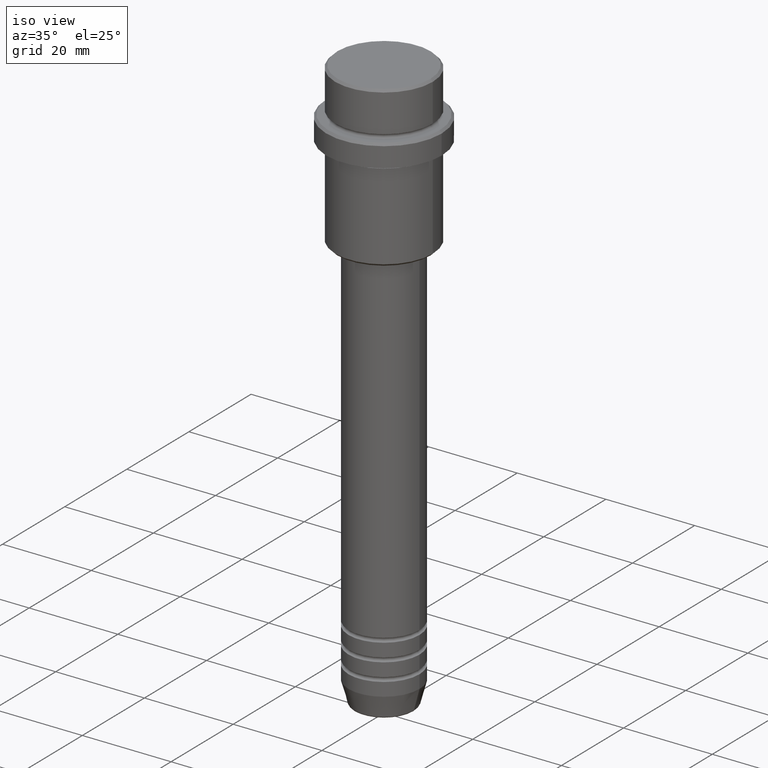
[diagram: clean part render]
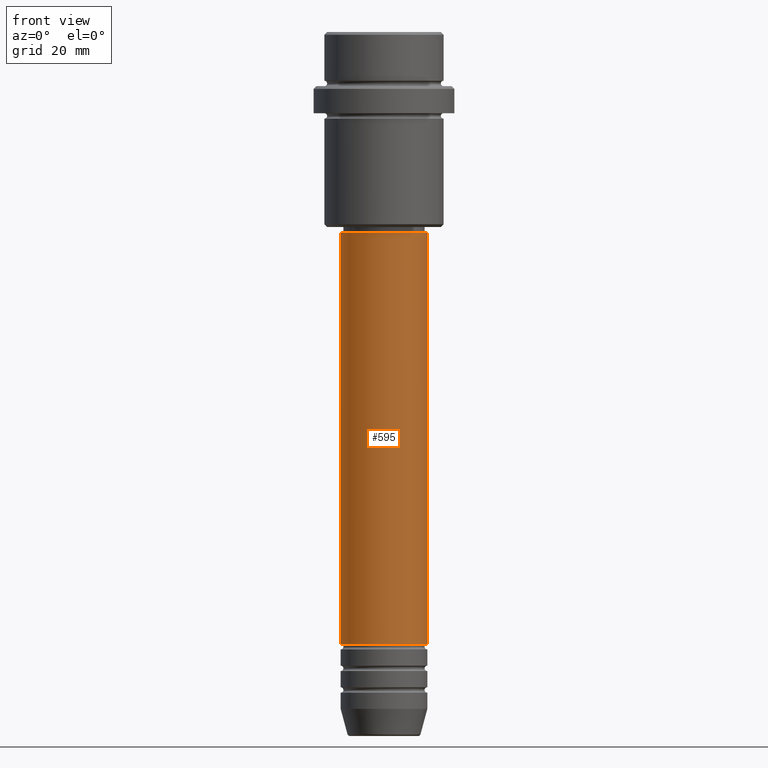
[diagram: tour spotlight — one face highlighted and labeled with its STEP entity id]
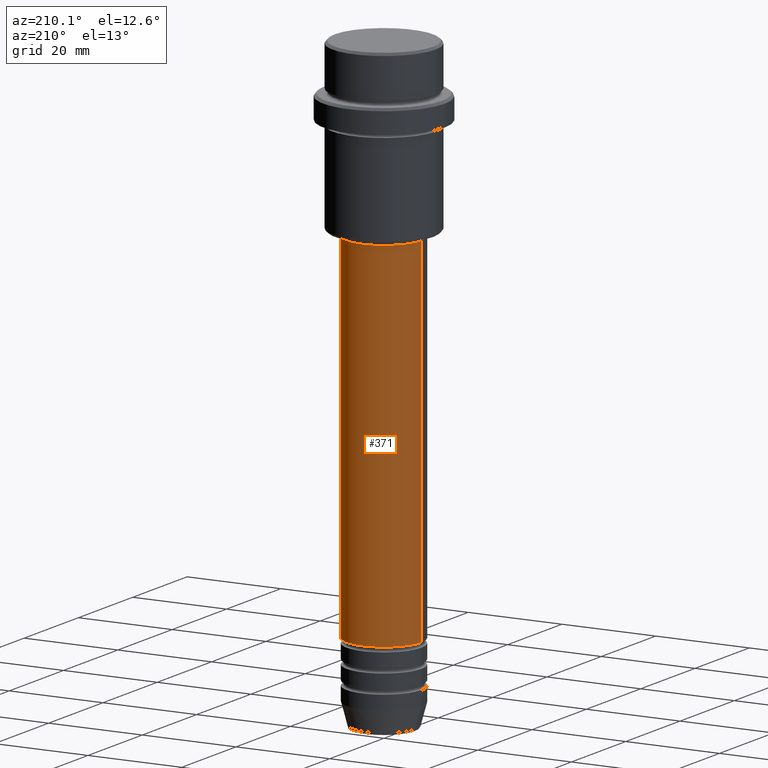
[diagram: tour spotlight — one face highlighted and labeled with its STEP entity id]
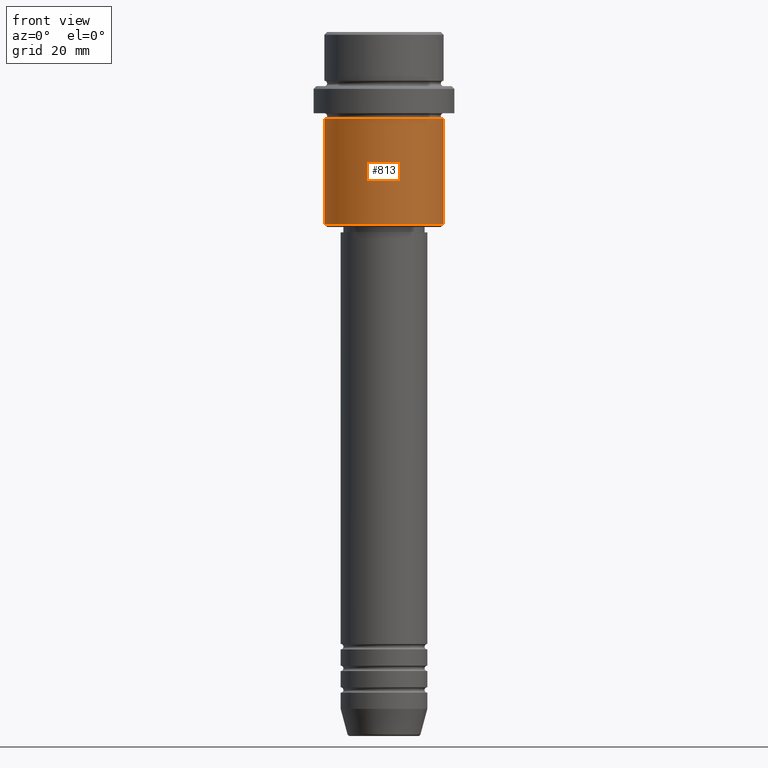
[diagram: tour spotlight — one face highlighted and labeled with its STEP entity id]
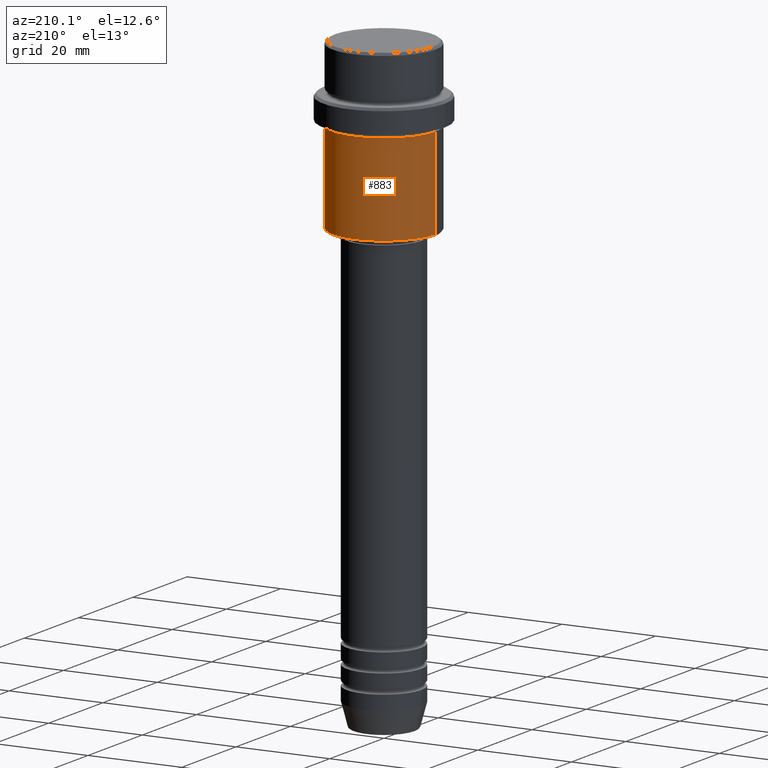
[diagram: tour spotlight — one face highlighted and labeled with its STEP entity id]
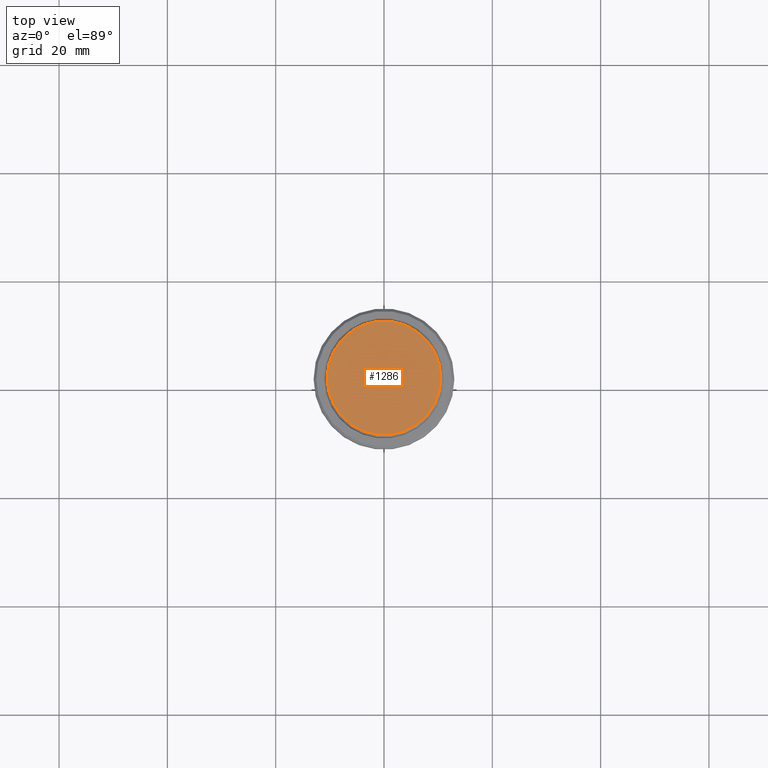
[diagram: tour spotlight — one face highlighted and labeled with its STEP entity id]
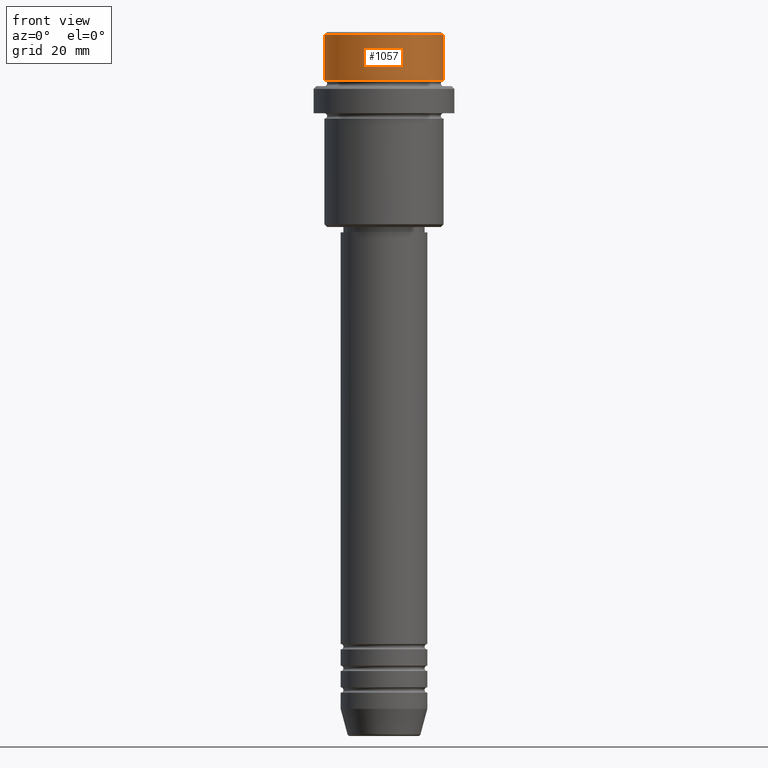
[diagram: tour spotlight — one face highlighted and labeled with its STEP entity id]
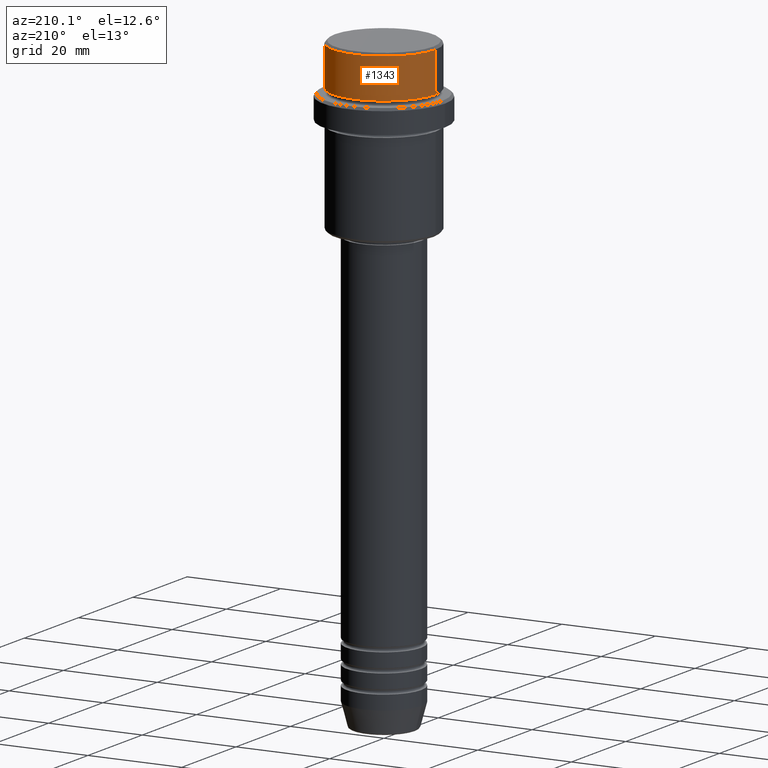
[diagram: tour spotlight — one face highlighted and labeled with its STEP entity id]
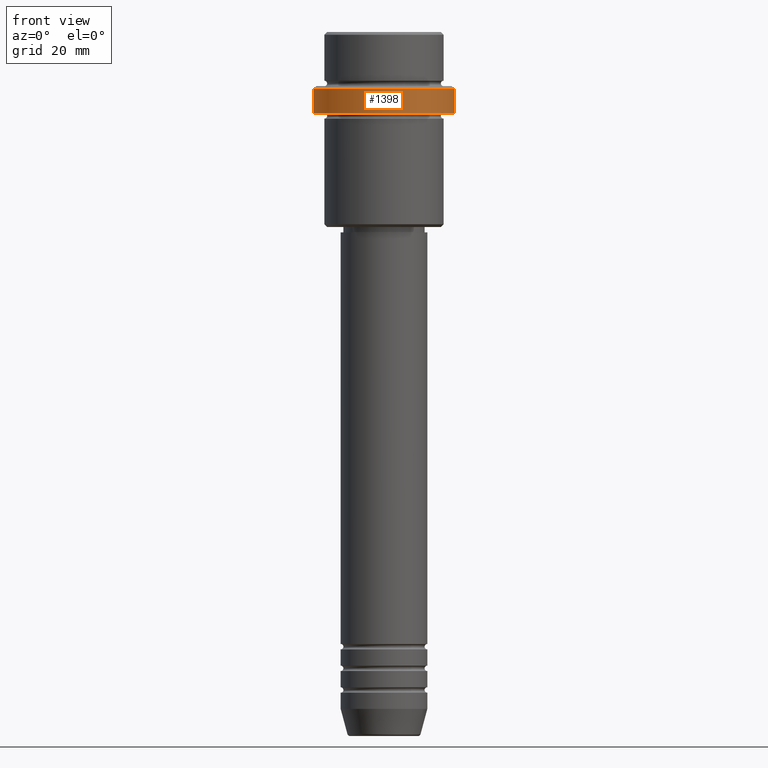
[diagram: tour spotlight — one face highlighted and labeled with its STEP entity id]
A machine part: a face-by-face anatomy tour. The part has 52 B-rep faces; the first image is the clean iso view, then the 8 largest visible faces are spotlighted one at a time (largest first), each with its STEP entity span.

Face 1 — front view, entity #595. In plain terms, the highlighted cylindrical surface (partial cylindrical patch) has radius 8 mm, axis along (-0, -0, 1).
Definition (entity closure, byte-faithful):
#19 = CARTESIAN_POINT ( 'NONE',  ( 0.000000000000000000, 0.000000000000000000, -112.9999999999998721 ) ) ;
#22 = DIRECTION ( 'NONE',  ( -0.000000000000000000, -0.000000000000000000, 1.000000000000000000 ) ) ;
#34 = CARTESIAN_POINT ( 'NONE',  ( -8.000000000000000000, 9.797174393178825657E-16, 0.000000000000000000 ) ) ;
#127 = VECTOR ( 'NONE', #1357, 1000.000000000000000 ) ;
#128 = DIRECTION ( 'NONE',  ( -0.000000000000000000, -0.000000000000000000, 1.000000000000000000 ) ) ;
#140 = LINE ( 'NONE', #591, #127 ) ;
#141 = LINE ( 'NONE', #34, #927 ) ;
#165 = EDGE_CURVE ( 'NONE', #943, #732, #141, .T. ) ;
#184 = EDGE_CURVE ( 'NONE', #943, #226, #672, .T. ) ;
#226 = VERTEX_POINT ( 'NONE', #1257 ) ;
#253 = EDGE_CURVE ( 'NONE', #226, #844, #140, .T. ) ;
#286 = AXIS2_PLACEMENT_3D ( 'NONE', #698, #1145, #925 ) ;
#380 = CIRCLE ( 'NONE', #888, 8.000000000000000000 ) ;
#510 = ORIENTED_EDGE ( 'NONE', *, *, #1412, .F. ) ;
#535 = CARTESIAN_POINT ( 'NONE',  ( -8.000000000000000000, 9.797174393178825657E-16, -112.9999999999998721 ) ) ;
#591 = CARTESIAN_POINT ( 'NONE',  ( 8.000000000000000000, 0.000000000000000000, 0.000000000000000000 ) ) ;
#595 = ADVANCED_FACE ( 'NONE', ( #1218 ), #1013, .T. ) ;
#657 = EDGE_LOOP ( 'NONE', ( #1197, #1394, #730, #510 ) ) ;
#672 = CIRCLE ( 'NONE', #863, 8.000000000000000000 ) ;
#698 = CARTESIAN_POINT ( 'NONE',  ( 0.000000000000000000, 0.000000000000000000, 0.000000000000000000 ) ) ;
#730 = ORIENTED_EDGE ( 'NONE', *, *, #253, .T. ) ;
#732 = VERTEX_POINT ( 'NONE', #1028 ) ;
#776 = DIRECTION ( 'NONE',  ( 1.000000000000000000, 0.000000000000000000, 0.000000000000000000 ) ) ;
#844 = VERTEX_POINT ( 'NONE', #1277 ) ;
#863 = AXIS2_PLACEMENT_3D ( 'NONE', #19, #1329, #776 ) ;
#888 = AXIS2_PLACEMENT_3D ( 'NONE', #1131, #22, #898 ) ;
#898 = DIRECTION ( 'NONE',  ( 1.000000000000000000, 0.000000000000000000, 0.000000000000000000 ) ) ;
#925 = DIRECTION ( 'NONE',  ( 1.000000000000000000, 0.000000000000000000, 0.000000000000000000 ) ) ;
#927 = VECTOR ( 'NONE', #128, 1000.000000000000000 ) ;
#943 = VERTEX_POINT ( 'NONE', #535 ) ;
#1013 = CYLINDRICAL_SURFACE ( 'NONE', #286, 8.000000000000000000 ) ;
#1028 = CARTESIAN_POINT ( 'NONE',  ( -8.000000000000000000, 9.797174393178825657E-16, -36.99999999999999289 ) ) ;
#1131 = CARTESIAN_POINT ( 'NONE',  ( 0.000000000000000000, 0.000000000000000000, -36.99999999999999289 ) ) ;
#1145 = DIRECTION ( 'NONE',  ( -0.000000000000000000, -0.000000000000000000, 1.000000000000000000 ) ) ;
#1197 = ORIENTED_EDGE ( 'NONE', *, *, #165, .F. ) ;
#1218 = FACE_OUTER_BOUND ( 'NONE', #657, .T. ) ;
#1257 = CARTESIAN_POINT ( 'NONE',  ( 8.000000000000000000, 0.000000000000000000, -112.9999999999998721 ) ) ;
#1277 = CARTESIAN_POINT ( 'NONE',  ( 8.000000000000000000, 0.000000000000000000, -36.99999999999999289 ) ) ;
#1329 = DIRECTION ( 'NONE',  ( -0.000000000000000000, -0.000000000000000000, 1.000000000000000000 ) ) ;
#1357 = DIRECTION ( 'NONE',  ( -0.000000000000000000, -0.000000000000000000, 1.000000000000000000 ) ) ;
#1394 = ORIENTED_EDGE ( 'NONE', *, *, #184, .T. ) ;
#1412 = EDGE_CURVE ( 'NONE', #732, #844, #380, .T. ) ;

Face 2 — auxiliary view, entity #371. In plain terms, the highlighted cylindrical surface (partial cylindrical patch) has radius 8 mm, axis along (-0, -0, 1).
Definition (entity closure, byte-faithful):
#34 = CARTESIAN_POINT ( 'NONE',  ( -8.000000000000000000, 9.797174393178825657E-16, 0.000000000000000000 ) ) ;
#52 = EDGE_CURVE ( 'NONE', #226, #943, #1047, .T. ) ;
#127 = VECTOR ( 'NONE', #1357, 1000.000000000000000 ) ;
#128 = DIRECTION ( 'NONE',  ( -0.000000000000000000, -0.000000000000000000, 1.000000000000000000 ) ) ;
#140 = LINE ( 'NONE', #591, #127 ) ;
#141 = LINE ( 'NONE', #34, #927 ) ;
#153 = AXIS2_PLACEMENT_3D ( 'NONE', #1256, #291, #501 ) ;
#165 = EDGE_CURVE ( 'NONE', #943, #732, #141, .T. ) ;
#198 = ORIENTED_EDGE ( 'NONE', *, *, #830, .F. ) ;
#226 = VERTEX_POINT ( 'NONE', #1257 ) ;
#253 = EDGE_CURVE ( 'NONE', #226, #844, #140, .T. ) ;
#291 = DIRECTION ( 'NONE',  ( -0.000000000000000000, -0.000000000000000000, 1.000000000000000000 ) ) ;
#371 = ADVANCED_FACE ( 'NONE', ( #722 ), #945, .T. ) ;
#501 = DIRECTION ( 'NONE',  ( 1.000000000000000000, 0.000000000000000000, 0.000000000000000000 ) ) ;
#535 = CARTESIAN_POINT ( 'NONE',  ( -8.000000000000000000, 9.797174393178825657E-16, -112.9999999999998721 ) ) ;
#584 = ORIENTED_EDGE ( 'NONE', *, *, #165, .T. ) ;
#591 = CARTESIAN_POINT ( 'NONE',  ( 8.000000000000000000, 0.000000000000000000, 0.000000000000000000 ) ) ;
#607 = DIRECTION ( 'NONE',  ( -0.000000000000000000, -0.000000000000000000, 1.000000000000000000 ) ) ;
#642 = CARTESIAN_POINT ( 'NONE',  ( 0.000000000000000000, 0.000000000000000000, -112.9999999999998721 ) ) ;
#711 = DIRECTION ( 'NONE',  ( 1.000000000000000000, 0.000000000000000000, 0.000000000000000000 ) ) ;
#718 = AXIS2_PLACEMENT_3D ( 'NONE', #642, #872, #1302 ) ;
#722 = FACE_OUTER_BOUND ( 'NONE', #993, .T. ) ;
#732 = VERTEX_POINT ( 'NONE', #1028 ) ;
#756 = ORIENTED_EDGE ( 'NONE', *, *, #52, .T. ) ;
#830 = EDGE_CURVE ( 'NONE', #844, #732, #1093, .T. ) ;
#844 = VERTEX_POINT ( 'NONE', #1277 ) ;
#872 = DIRECTION ( 'NONE',  ( -0.000000000000000000, -0.000000000000000000, 1.000000000000000000 ) ) ;
#927 = VECTOR ( 'NONE', #128, 1000.000000000000000 ) ;
#943 = VERTEX_POINT ( 'NONE', #535 ) ;
#945 = CYLINDRICAL_SURFACE ( 'NONE', #1371, 8.000000000000000000 ) ;
#992 = ORIENTED_EDGE ( 'NONE', *, *, #253, .F. ) ;
#993 = EDGE_LOOP ( 'NONE', ( #756, #584, #198, #992 ) ) ;
#1028 = CARTESIAN_POINT ( 'NONE',  ( -8.000000000000000000, 9.797174393178825657E-16, -36.99999999999999289 ) ) ;
#1047 = CIRCLE ( 'NONE', #718, 8.000000000000000000 ) ;
#1093 = CIRCLE ( 'NONE', #153, 8.000000000000000000 ) ;
#1256 = CARTESIAN_POINT ( 'NONE',  ( 0.000000000000000000, 0.000000000000000000, -36.99999999999999289 ) ) ;
#1257 = CARTESIAN_POINT ( 'NONE',  ( 8.000000000000000000, 0.000000000000000000, -112.9999999999998721 ) ) ;
#1277 = CARTESIAN_POINT ( 'NONE',  ( 8.000000000000000000, 0.000000000000000000, -36.99999999999999289 ) ) ;
#1302 = DIRECTION ( 'NONE',  ( 1.000000000000000000, 0.000000000000000000, 0.000000000000000000 ) ) ;
#1357 = DIRECTION ( 'NONE',  ( -0.000000000000000000, -0.000000000000000000, 1.000000000000000000 ) ) ;
#1371 = AXIS2_PLACEMENT_3D ( 'NONE', #1372, #607, #711 ) ;
#1372 = CARTESIAN_POINT ( 'NONE',  ( 0.000000000000000000, 0.000000000000000000, 0.000000000000000000 ) ) ;

Face 3 — front view, entity #813. In plain terms, the highlighted cylindrical surface (partial cylindrical patch) has radius 11 mm, axis along (-0, -0, 1).
Definition (entity closure, byte-faithful):
#67 = DIRECTION ( 'NONE',  ( 1.000000000000000000, 0.000000000000000000, 0.000000000000000000 ) ) ;
#76 = CARTESIAN_POINT ( 'NONE',  ( 10.99999999999998757, 0.000000000000000000, -35.50000000000001421 ) ) ;
#99 = LINE ( 'NONE', #1192, #581 ) ;
#124 = AXIS2_PLACEMENT_3D ( 'NONE', #391, #281, #733 ) ;
#172 = FACE_OUTER_BOUND ( 'NONE', #505, .T. ) ;
#179 = DIRECTION ( 'NONE',  ( -1.000000000000000000, 0.000000000000000000, 0.000000000000000000 ) ) ;
#224 = EDGE_CURVE ( 'NONE', #528, #988, #1050, .T. ) ;
#281 = DIRECTION ( 'NONE',  ( -0.000000000000000000, -0.000000000000000000, 1.000000000000000000 ) ) ;
#307 = EDGE_CURVE ( 'NONE', #528, #336, #791, .T. ) ;
#313 = CIRCLE ( 'NONE', #124, 10.99999999999997158 ) ;
#336 = VERTEX_POINT ( 'NONE', #76 ) ;
#352 = EDGE_CURVE ( 'NONE', #988, #478, #313, .T. ) ;
#359 = AXIS2_PLACEMENT_3D ( 'NONE', #403, #1262, #179 ) ;
#370 = CARTESIAN_POINT ( 'NONE',  ( -10.99999999999998757, 1.347111479062086827E-15, 0.000000000000000000 ) ) ;
#391 = CARTESIAN_POINT ( 'NONE',  ( 0.000000000000000000, 0.000000000000000000, -16.00000000000000355 ) ) ;
#403 = CARTESIAN_POINT ( 'NONE',  ( 0.000000000000000000, 0.000000000000000000, -35.50000000000001421 ) ) ;
#478 = VERTEX_POINT ( 'NONE', #1088 ) ;
#481 = EDGE_CURVE ( 'NONE', #336, #478, #99, .T. ) ;
#505 = EDGE_LOOP ( 'NONE', ( #962, #942, #660, #1358 ) ) ;
#528 = VERTEX_POINT ( 'NONE', #544 ) ;
#531 = DIRECTION ( 'NONE',  ( -0.000000000000000000, -0.000000000000000000, 1.000000000000000000 ) ) ;
#544 = CARTESIAN_POINT ( 'NONE',  ( -10.99999999999998757, 1.347111479062086827E-15, -35.50000000000001421 ) ) ;
#581 = VECTOR ( 'NONE', #531, 1000.000000000000000 ) ;
#660 = ORIENTED_EDGE ( 'NONE', *, *, #481, .T. ) ;
#733 = DIRECTION ( 'NONE',  ( 1.000000000000000000, 0.000000000000000000, 0.000000000000000000 ) ) ;
#791 = CIRCLE ( 'NONE', #359, 10.99999999999998757 ) ;
#813 = ADVANCED_FACE ( 'NONE', ( #172 ), #824, .T. ) ;
#824 = CYLINDRICAL_SURFACE ( 'NONE', #976, 10.99999999999998757 ) ;
#828 = DIRECTION ( 'NONE',  ( -0.000000000000000000, -0.000000000000000000, 1.000000000000000000 ) ) ;
#850 = CARTESIAN_POINT ( 'NONE',  ( 0.000000000000000000, 0.000000000000000000, 0.000000000000000000 ) ) ;
#942 = ORIENTED_EDGE ( 'NONE', *, *, #307, .T. ) ;
#962 = ORIENTED_EDGE ( 'NONE', *, *, #224, .F. ) ;
#976 = AXIS2_PLACEMENT_3D ( 'NONE', #850, #828, #67 ) ;
#979 = VECTOR ( 'NONE', #1239, 1000.000000000000000 ) ;
#988 = VERTEX_POINT ( 'NONE', #1109 ) ;
#1050 = LINE ( 'NONE', #370, #979 ) ;
#1088 = CARTESIAN_POINT ( 'NONE',  ( 10.99999999999997158, 0.000000000000000000, -16.00000000000000355 ) ) ;
#1109 = CARTESIAN_POINT ( 'NONE',  ( -10.99999999999997158, 1.347111479062085841E-15, -16.00000000000000355 ) ) ;
#1192 = CARTESIAN_POINT ( 'NONE',  ( 10.99999999999998757, 0.000000000000000000, 0.000000000000000000 ) ) ;
#1239 = DIRECTION ( 'NONE',  ( -0.000000000000000000, -0.000000000000000000, 1.000000000000000000 ) ) ;
#1262 = DIRECTION ( 'NONE',  ( -0.000000000000000000, -0.000000000000000000, 1.000000000000000000 ) ) ;
#1358 = ORIENTED_EDGE ( 'NONE', *, *, #352, .F. ) ;

Face 4 — auxiliary view, entity #883. In plain terms, the highlighted cylindrical surface (partial cylindrical patch) has radius 11 mm, axis along (-0, -0, 1).
Definition (entity closure, byte-faithful):
#66 = EDGE_CURVE ( 'NONE', #478, #988, #149, .T. ) ;
#73 = ORIENTED_EDGE ( 'NONE', *, *, #66, .F. ) ;
#76 = CARTESIAN_POINT ( 'NONE',  ( 10.99999999999998757, 0.000000000000000000, -35.50000000000001421 ) ) ;
#99 = LINE ( 'NONE', #1192, #581 ) ;
#100 = EDGE_CURVE ( 'NONE', #336, #528, #1118, .T. ) ;
#149 = CIRCLE ( 'NONE', #283, 10.99999999999997158 ) ;
#224 = EDGE_CURVE ( 'NONE', #528, #988, #1050, .T. ) ;
#235 = DIRECTION ( 'NONE',  ( -0.000000000000000000, -0.000000000000000000, 1.000000000000000000 ) ) ;
#283 = AXIS2_PLACEMENT_3D ( 'NONE', #328, #1415, #1309 ) ;
#309 = ORIENTED_EDGE ( 'NONE', *, *, #224, .T. ) ;
#328 = CARTESIAN_POINT ( 'NONE',  ( 0.000000000000000000, 0.000000000000000000, -16.00000000000000355 ) ) ;
#336 = VERTEX_POINT ( 'NONE', #76 ) ;
#354 = ORIENTED_EDGE ( 'NONE', *, *, #100, .T. ) ;
#370 = CARTESIAN_POINT ( 'NONE',  ( -10.99999999999998757, 1.347111479062086827E-15, 0.000000000000000000 ) ) ;
#478 = VERTEX_POINT ( 'NONE', #1088 ) ;
#481 = EDGE_CURVE ( 'NONE', #336, #478, #99, .T. ) ;
#484 = AXIS2_PLACEMENT_3D ( 'NONE', #706, #1296, #1410 ) ;
#519 = ORIENTED_EDGE ( 'NONE', *, *, #481, .F. ) ;
#528 = VERTEX_POINT ( 'NONE', #544 ) ;
#531 = DIRECTION ( 'NONE',  ( -0.000000000000000000, -0.000000000000000000, 1.000000000000000000 ) ) ;
#544 = CARTESIAN_POINT ( 'NONE',  ( -10.99999999999998757, 1.347111479062086827E-15, -35.50000000000001421 ) ) ;
#545 = EDGE_LOOP ( 'NONE', ( #354, #309, #73, #519 ) ) ;
#577 = DIRECTION ( 'NONE',  ( -1.000000000000000000, 0.000000000000000000, 0.000000000000000000 ) ) ;
#581 = VECTOR ( 'NONE', #531, 1000.000000000000000 ) ;
#647 = AXIS2_PLACEMENT_3D ( 'NONE', #1323, #235, #577 ) ;
#706 = CARTESIAN_POINT ( 'NONE',  ( 0.000000000000000000, 0.000000000000000000, 0.000000000000000000 ) ) ;
#883 = ADVANCED_FACE ( 'NONE', ( #931 ), #1252, .T. ) ;
#931 = FACE_OUTER_BOUND ( 'NONE', #545, .T. ) ;
#979 = VECTOR ( 'NONE', #1239, 1000.000000000000000 ) ;
#988 = VERTEX_POINT ( 'NONE', #1109 ) ;
#1050 = LINE ( 'NONE', #370, #979 ) ;
#1088 = CARTESIAN_POINT ( 'NONE',  ( 10.99999999999997158, 0.000000000000000000, -16.00000000000000355 ) ) ;
#1109 = CARTESIAN_POINT ( 'NONE',  ( -10.99999999999997158, 1.347111479062085841E-15, -16.00000000000000355 ) ) ;
#1118 = CIRCLE ( 'NONE', #647, 10.99999999999998757 ) ;
#1192 = CARTESIAN_POINT ( 'NONE',  ( 10.99999999999998757, 0.000000000000000000, 0.000000000000000000 ) ) ;
#1239 = DIRECTION ( 'NONE',  ( -0.000000000000000000, -0.000000000000000000, 1.000000000000000000 ) ) ;
#1252 = CYLINDRICAL_SURFACE ( 'NONE', #484, 10.99999999999998757 ) ;
#1296 = DIRECTION ( 'NONE',  ( -0.000000000000000000, -0.000000000000000000, 1.000000000000000000 ) ) ;
#1309 = DIRECTION ( 'NONE',  ( 1.000000000000000000, 0.000000000000000000, 0.000000000000000000 ) ) ;
#1323 = CARTESIAN_POINT ( 'NONE',  ( 0.000000000000000000, 0.000000000000000000, -35.50000000000001421 ) ) ;
#1410 = DIRECTION ( 'NONE',  ( 1.000000000000000000, 0.000000000000000000, 0.000000000000000000 ) ) ;
#1415 = DIRECTION ( 'NONE',  ( -0.000000000000000000, -0.000000000000000000, 1.000000000000000000 ) ) ;

Face 5 — top view, entity #1286. In plain terms, the highlighted planar face has unit normal (0, -0, 1).
Definition (entity closure, byte-faithful):
#4 = VERTEX_POINT ( 'NONE', #1273 ) ;
#45 = CARTESIAN_POINT ( 'NONE',  ( 0.000000000000000000, 0.000000000000000000, 0.000000000000000000 ) ) ;
#57 = AXIS2_PLACEMENT_3D ( 'NONE', #725, #681, #1106 ) ;
#72 = EDGE_CURVE ( 'NONE', #1299, #4, #833, .T. ) ;
#108 = DIRECTION ( 'NONE',  ( 0.000000000000000000, -0.000000000000000000, 1.000000000000000000 ) ) ;
#285 = EDGE_CURVE ( 'NONE', #4, #1299, #527, .T. ) ;
#304 = DIRECTION ( 'NONE',  ( 1.000000000000000000, 0.000000000000000000, 0.000000000000000000 ) ) ;
#527 = CIRCLE ( 'NONE', #534, 10.50000000000000888 ) ;
#534 = AXIS2_PLACEMENT_3D ( 'NONE', #45, #1350, #815 ) ;
#576 = ORIENTED_EDGE ( 'NONE', *, *, #72, .T. ) ;
#609 = ORIENTED_EDGE ( 'NONE', *, *, #285, .T. ) ;
#681 = DIRECTION ( 'NONE',  ( -0.000000000000000000, -0.000000000000000000, 1.000000000000000000 ) ) ;
#716 = EDGE_LOOP ( 'NONE', ( #576, #609 ) ) ;
#725 = CARTESIAN_POINT ( 'NONE',  ( 0.000000000000000000, 0.000000000000000000, 0.000000000000000000 ) ) ;
#815 = DIRECTION ( 'NONE',  ( 1.000000000000000000, 0.000000000000000000, 0.000000000000000000 ) ) ;
#833 = CIRCLE ( 'NONE', #57, 10.50000000000000888 ) ;
#878 = PLANE ( 'NONE',  #1068 ) ;
#981 = CARTESIAN_POINT ( 'NONE',  ( -10.50000000000000888, 0.000000000000000000, 0.000000000000000000 ) ) ;
#1068 = AXIS2_PLACEMENT_3D ( 'NONE', #1102, #108, #304 ) ;
#1102 = CARTESIAN_POINT ( 'NONE',  ( 0.000000000000000000, 0.000000000000000000, 0.000000000000000000 ) ) ;
#1106 = DIRECTION ( 'NONE',  ( 1.000000000000000000, 0.000000000000000000, 0.000000000000000000 ) ) ;
#1273 = CARTESIAN_POINT ( 'NONE',  ( 10.50000000000000888, 1.316495309083404420E-15, 0.000000000000000000 ) ) ;
#1275 = FACE_OUTER_BOUND ( 'NONE', #716, .T. ) ;
#1286 = ADVANCED_FACE ( 'NONE', ( #1275 ), #878, .T. ) ;
#1299 = VERTEX_POINT ( 'NONE', #981 ) ;
#1350 = DIRECTION ( 'NONE',  ( -0.000000000000000000, -0.000000000000000000, 1.000000000000000000 ) ) ;

Face 6 — front view, entity #1057. In plain terms, the highlighted cylindrical surface (partial cylindrical patch) has radius 11 mm, axis along (-0, -0, 1).
Definition (entity closure, byte-faithful):
#106 = ORIENTED_EDGE ( 'NONE', *, *, #682, .T. ) ;
#168 = DIRECTION ( 'NONE',  ( 0.000000000000000000, 0.000000000000000000, -1.000000000000000000 ) ) ;
#186 = ORIENTED_EDGE ( 'NONE', *, *, #382, .T. ) ;
#244 = AXIS2_PLACEMENT_3D ( 'NONE', #710, #168, #1146 ) ;
#259 = CARTESIAN_POINT ( 'NONE',  ( -10.99999999999998757, 1.347111479062086827E-15, -0.4999999999999882871 ) ) ;
#316 = CARTESIAN_POINT ( 'NONE',  ( -10.99999999999997158, 1.347111479062085841E-15, -9.000000000000000000 ) ) ;
#329 = CARTESIAN_POINT ( 'NONE',  ( 10.99999999999998757, 0.000000000000000000, -0.4999999999999882871 ) ) ;
#368 = CARTESIAN_POINT ( 'NONE',  ( -10.99999999999998757, 1.347111479062086827E-15, 0.000000000000000000 ) ) ;
#382 = EDGE_CURVE ( 'NONE', #680, #1316, #1166, .T. ) ;
#407 = VERTEX_POINT ( 'NONE', #316 ) ;
#429 = CARTESIAN_POINT ( 'NONE',  ( 10.99999999999997158, 0.000000000000000000, -9.000000000000000000 ) ) ;
#441 = DIRECTION ( 'NONE',  ( 1.000000000000000000, 0.000000000000000000, 0.000000000000000000 ) ) ;
#442 = ORIENTED_EDGE ( 'NONE', *, *, #1059, .F. ) ;
#463 = DIRECTION ( 'NONE',  ( -0.000000000000000000, -0.000000000000000000, 1.000000000000000000 ) ) ;
#468 = FACE_OUTER_BOUND ( 'NONE', #1345, .T. ) ;
#536 = DIRECTION ( 'NONE',  ( -0.000000000000000000, -0.000000000000000000, 1.000000000000000000 ) ) ;
#566 = CYLINDRICAL_SURFACE ( 'NONE', #978, 10.99999999999998757 ) ;
#614 = DIRECTION ( 'NONE',  ( -0.000000000000000000, -0.000000000000000000, 1.000000000000000000 ) ) ;
#645 = CARTESIAN_POINT ( 'NONE',  ( 0.000000000000000000, 0.000000000000000000, -9.000000000000000000 ) ) ;
#650 = VECTOR ( 'NONE', #614, 1000.000000000000000 ) ;
#680 = VERTEX_POINT ( 'NONE', #429 ) ;
#682 = EDGE_CURVE ( 'NONE', #407, #680, #907, .T. ) ;
#710 = CARTESIAN_POINT ( 'NONE',  ( 0.000000000000000000, 0.000000000000000000, -0.4999999999999882871 ) ) ;
#802 = DIRECTION ( 'NONE',  ( -0.000000000000000000, -0.000000000000000000, 1.000000000000000000 ) ) ;
#836 = AXIS2_PLACEMENT_3D ( 'NONE', #645, #536, #441 ) ;
#845 = ORIENTED_EDGE ( 'NONE', *, *, #1126, .T. ) ;
#907 = CIRCLE ( 'NONE', #836, 10.99999999999997158 ) ;
#908 = DIRECTION ( 'NONE',  ( 1.000000000000000000, 0.000000000000000000, 0.000000000000000000 ) ) ;
#978 = AXIS2_PLACEMENT_3D ( 'NONE', #1015, #463, #908 ) ;
#1005 = CIRCLE ( 'NONE', #244, 10.99999999999998757 ) ;
#1015 = CARTESIAN_POINT ( 'NONE',  ( 0.000000000000000000, 0.000000000000000000, 0.000000000000000000 ) ) ;
#1057 = ADVANCED_FACE ( 'NONE', ( #468 ), #566, .T. ) ;
#1059 = EDGE_CURVE ( 'NONE', #407, #1099, #1341, .T. ) ;
#1099 = VERTEX_POINT ( 'NONE', #259 ) ;
#1126 = EDGE_CURVE ( 'NONE', #1316, #1099, #1005, .T. ) ;
#1146 = DIRECTION ( 'NONE',  ( 1.000000000000000000, 0.000000000000000000, 0.000000000000000000 ) ) ;
#1156 = CARTESIAN_POINT ( 'NONE',  ( 10.99999999999998757, 0.000000000000000000, 0.000000000000000000 ) ) ;
#1166 = LINE ( 'NONE', #1156, #650 ) ;
#1228 = VECTOR ( 'NONE', #802, 1000.000000000000000 ) ;
#1316 = VERTEX_POINT ( 'NONE', #329 ) ;
#1341 = LINE ( 'NONE', #368, #1228 ) ;
#1345 = EDGE_LOOP ( 'NONE', ( #442, #106, #186, #845 ) ) ;

Face 7 — auxiliary view, entity #1343. In plain terms, the highlighted cylindrical surface (partial cylindrical patch) has radius 11 mm, axis along (-0, -0, 1).
Definition (entity closure, byte-faithful):
#33 = CIRCLE ( 'NONE', #948, 10.99999999999997158 ) ;
#152 = DIRECTION ( 'NONE',  ( -0.000000000000000000, -0.000000000000000000, 1.000000000000000000 ) ) ;
#183 = CARTESIAN_POINT ( 'NONE',  ( 0.000000000000000000, 0.000000000000000000, -0.4999999999999882871 ) ) ;
#190 = DIRECTION ( 'NONE',  ( 0.000000000000000000, 0.000000000000000000, -1.000000000000000000 ) ) ;
#236 = CARTESIAN_POINT ( 'NONE',  ( 0.000000000000000000, 0.000000000000000000, -9.000000000000000000 ) ) ;
#259 = CARTESIAN_POINT ( 'NONE',  ( -10.99999999999998757, 1.347111479062086827E-15, -0.4999999999999882871 ) ) ;
#316 = CARTESIAN_POINT ( 'NONE',  ( -10.99999999999997158, 1.347111479062085841E-15, -9.000000000000000000 ) ) ;
#329 = CARTESIAN_POINT ( 'NONE',  ( 10.99999999999998757, 0.000000000000000000, -0.4999999999999882871 ) ) ;
#337 = CIRCLE ( 'NONE', #1063, 10.99999999999998757 ) ;
#368 = CARTESIAN_POINT ( 'NONE',  ( -10.99999999999998757, 1.347111479062086827E-15, 0.000000000000000000 ) ) ;
#382 = EDGE_CURVE ( 'NONE', #680, #1316, #1166, .T. ) ;
#392 = EDGE_CURVE ( 'NONE', #1099, #1316, #337, .T. ) ;
#407 = VERTEX_POINT ( 'NONE', #316 ) ;
#429 = CARTESIAN_POINT ( 'NONE',  ( 10.99999999999997158, 0.000000000000000000, -9.000000000000000000 ) ) ;
#475 = DIRECTION ( 'NONE',  ( 1.000000000000000000, 0.000000000000000000, 0.000000000000000000 ) ) ;
#477 = EDGE_CURVE ( 'NONE', #680, #407, #33, .T. ) ;
#521 = DIRECTION ( 'NONE',  ( 1.000000000000000000, 0.000000000000000000, 0.000000000000000000 ) ) ;
#547 = DIRECTION ( 'NONE',  ( -0.000000000000000000, -0.000000000000000000, 1.000000000000000000 ) ) ;
#614 = DIRECTION ( 'NONE',  ( -0.000000000000000000, -0.000000000000000000, 1.000000000000000000 ) ) ;
#627 = ORIENTED_EDGE ( 'NONE', *, *, #382, .F. ) ;
#635 = ORIENTED_EDGE ( 'NONE', *, *, #1059, .T. ) ;
#643 = FACE_OUTER_BOUND ( 'NONE', #1175, .T. ) ;
#650 = VECTOR ( 'NONE', #614, 1000.000000000000000 ) ;
#680 = VERTEX_POINT ( 'NONE', #429 ) ;
#802 = DIRECTION ( 'NONE',  ( -0.000000000000000000, -0.000000000000000000, 1.000000000000000000 ) ) ;
#948 = AXIS2_PLACEMENT_3D ( 'NONE', #236, #152, #475 ) ;
#987 = CYLINDRICAL_SURFACE ( 'NONE', #1006, 10.99999999999998757 ) ;
#1006 = AXIS2_PLACEMENT_3D ( 'NONE', #1071, #547, #521 ) ;
#1020 = ORIENTED_EDGE ( 'NONE', *, *, #477, .T. ) ;
#1059 = EDGE_CURVE ( 'NONE', #407, #1099, #1341, .T. ) ;
#1061 = ORIENTED_EDGE ( 'NONE', *, *, #392, .T. ) ;
#1063 = AXIS2_PLACEMENT_3D ( 'NONE', #183, #190, #1072 ) ;
#1071 = CARTESIAN_POINT ( 'NONE',  ( 0.000000000000000000, 0.000000000000000000, 0.000000000000000000 ) ) ;
#1072 = DIRECTION ( 'NONE',  ( 1.000000000000000000, 0.000000000000000000, 0.000000000000000000 ) ) ;
#1099 = VERTEX_POINT ( 'NONE', #259 ) ;
#1156 = CARTESIAN_POINT ( 'NONE',  ( 10.99999999999998757, 0.000000000000000000, 0.000000000000000000 ) ) ;
#1166 = LINE ( 'NONE', #1156, #650 ) ;
#1175 = EDGE_LOOP ( 'NONE', ( #1020, #635, #1061, #627 ) ) ;
#1228 = VECTOR ( 'NONE', #802, 1000.000000000000000 ) ;
#1316 = VERTEX_POINT ( 'NONE', #329 ) ;
#1341 = LINE ( 'NONE', #368, #1228 ) ;
#1343 = ADVANCED_FACE ( 'NONE', ( #643 ), #987, .T. ) ;

Face 8 — front view, entity #1398. In plain terms, the highlighted cylindrical surface (partial cylindrical patch) has radius 13 mm, axis along (-0, -0, 1).
Definition (entity closure, byte-faithful):
#29 = CYLINDRICAL_SURFACE ( 'NONE', #772, 13.00000000000000000 ) ;
#39 = AXIS2_PLACEMENT_3D ( 'NONE', #188, #961, #1388 ) ;
#138 = EDGE_CURVE ( 'NONE', #560, #707, #1114, .T. ) ;
#188 = CARTESIAN_POINT ( 'NONE',  ( 0.000000000000000000, 0.000000000000000000, -10.50000000000000711 ) ) ;
#214 = VECTOR ( 'NONE', #1022, 1000.000000000000000 ) ;
#231 = DIRECTION ( 'NONE',  ( -0.000000000000000000, -0.000000000000000000, 1.000000000000000000 ) ) ;
#238 = CARTESIAN_POINT ( 'NONE',  ( 0.000000000000000000, 0.000000000000000000, -15.00000000000000178 ) ) ;
#288 = CIRCLE ( 'NONE', #1375, 13.00000000000000000 ) ;
#332 = ORIENTED_EDGE ( 'NONE', *, *, #1040, .T. ) ;
#334 = CARTESIAN_POINT ( 'NONE',  ( -13.00000000000000000, 1.592040838891559095E-15, 0.000000000000000000 ) ) ;
#356 = DIRECTION ( 'NONE',  ( -0.000000000000000000, -0.000000000000000000, 1.000000000000000000 ) ) ;
#372 = DIRECTION ( 'NONE',  ( 1.000000000000000000, 0.000000000000000000, 0.000000000000000000 ) ) ;
#405 = VERTEX_POINT ( 'NONE', #963 ) ;
#409 = ORIENTED_EDGE ( 'NONE', *, *, #138, .F. ) ;
#415 = FACE_OUTER_BOUND ( 'NONE', #1111, .T. ) ;
#461 = DIRECTION ( 'NONE',  ( 1.000000000000000000, 0.000000000000000000, 0.000000000000000000 ) ) ;
#465 = CARTESIAN_POINT ( 'NONE',  ( 13.00000000000000000, 0.000000000000000000, 0.000000000000000000 ) ) ;
#498 = ORIENTED_EDGE ( 'NONE', *, *, #799, .T. ) ;
#541 = CARTESIAN_POINT ( 'NONE',  ( -13.00000000000000000, 1.592040838891559095E-15, -10.50000000000000711 ) ) ;
#560 = VERTEX_POINT ( 'NONE', #1320 ) ;
#567 = LINE ( 'NONE', #465, #949 ) ;
#630 = CARTESIAN_POINT ( 'NONE',  ( 13.00000000000000000, 0.000000000000000000, -10.50000000000000711 ) ) ;
#634 = ORIENTED_EDGE ( 'NONE', *, *, #1389, .T. ) ;
#707 = VERTEX_POINT ( 'NONE', #541 ) ;
#772 = AXIS2_PLACEMENT_3D ( 'NONE', #886, #356, #461 ) ;
#799 = EDGE_CURVE ( 'NONE', #405, #1272, #567, .T. ) ;
#819 = CIRCLE ( 'NONE', #39, 13.00000000000000000 ) ;
#886 = CARTESIAN_POINT ( 'NONE',  ( 0.000000000000000000, 0.000000000000000000, 0.000000000000000000 ) ) ;
#918 = DIRECTION ( 'NONE',  ( -0.000000000000000000, -0.000000000000000000, 1.000000000000000000 ) ) ;
#949 = VECTOR ( 'NONE', #918, 1000.000000000000000 ) ;
#961 = DIRECTION ( 'NONE',  ( 0.000000000000000000, 0.000000000000000000, -1.000000000000000000 ) ) ;
#963 = CARTESIAN_POINT ( 'NONE',  ( 13.00000000000000000, 0.000000000000000000, -15.00000000000000178 ) ) ;
#1022 = DIRECTION ( 'NONE',  ( -0.000000000000000000, -0.000000000000000000, 1.000000000000000000 ) ) ;
#1040 = EDGE_CURVE ( 'NONE', #560, #405, #288, .T. ) ;
#1111 = EDGE_LOOP ( 'NONE', ( #409, #332, #498, #634 ) ) ;
#1114 = LINE ( 'NONE', #334, #214 ) ;
#1272 = VERTEX_POINT ( 'NONE', #630 ) ;
#1320 = CARTESIAN_POINT ( 'NONE',  ( -13.00000000000000000, 1.592040838891559095E-15, -15.00000000000000178 ) ) ;
#1375 = AXIS2_PLACEMENT_3D ( 'NONE', #238, #231, #372 ) ;
#1388 = DIRECTION ( 'NONE',  ( 1.000000000000000000, 0.000000000000000000, 0.000000000000000000 ) ) ;
#1389 = EDGE_CURVE ( 'NONE', #1272, #707, #819, .T. ) ;
#1398 = ADVANCED_FACE ( 'NONE', ( #415 ), #29, .T. ) ;